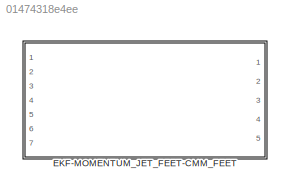
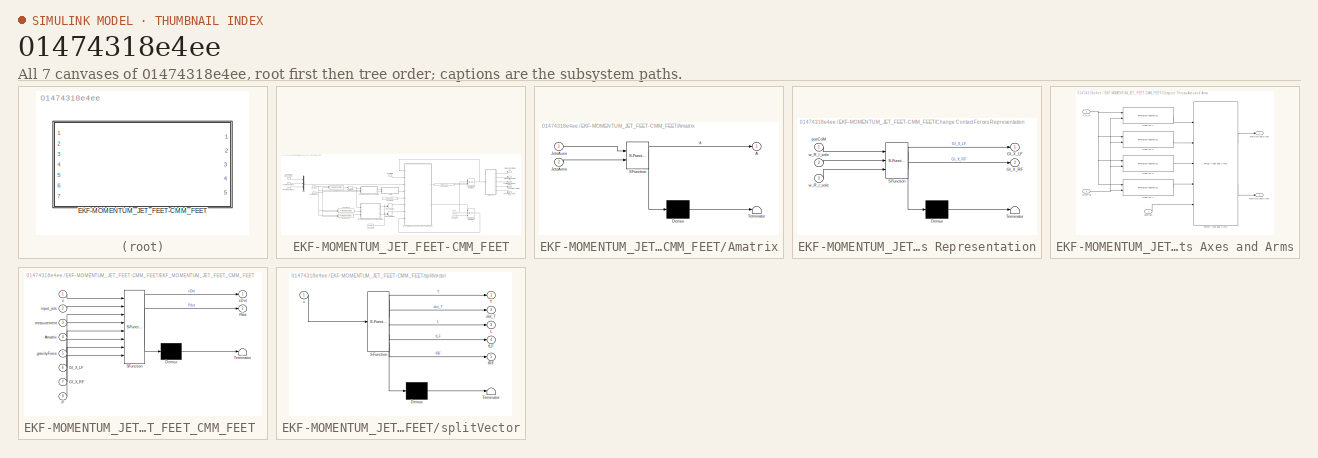
[diagram: thumbnail index - all 7 canvases of the model, root first then tree order]
MODEL slx_01474318e4ee
KIND library
CONFIG AbsTol = auto
CONFIG EnableMultiTasking = off
CONFIG FixedStep = auto
CONFIG MaxStep = auto
CONFIG MinStep = auto
CONFIG RelTol = 1e-3
CONFIG SampleTimeConstraint = Unconstrained
CONFIG SolverName = VariableStepAuto
CONFIG StartTime = 0.0
CONFIG StopTime = 10.0
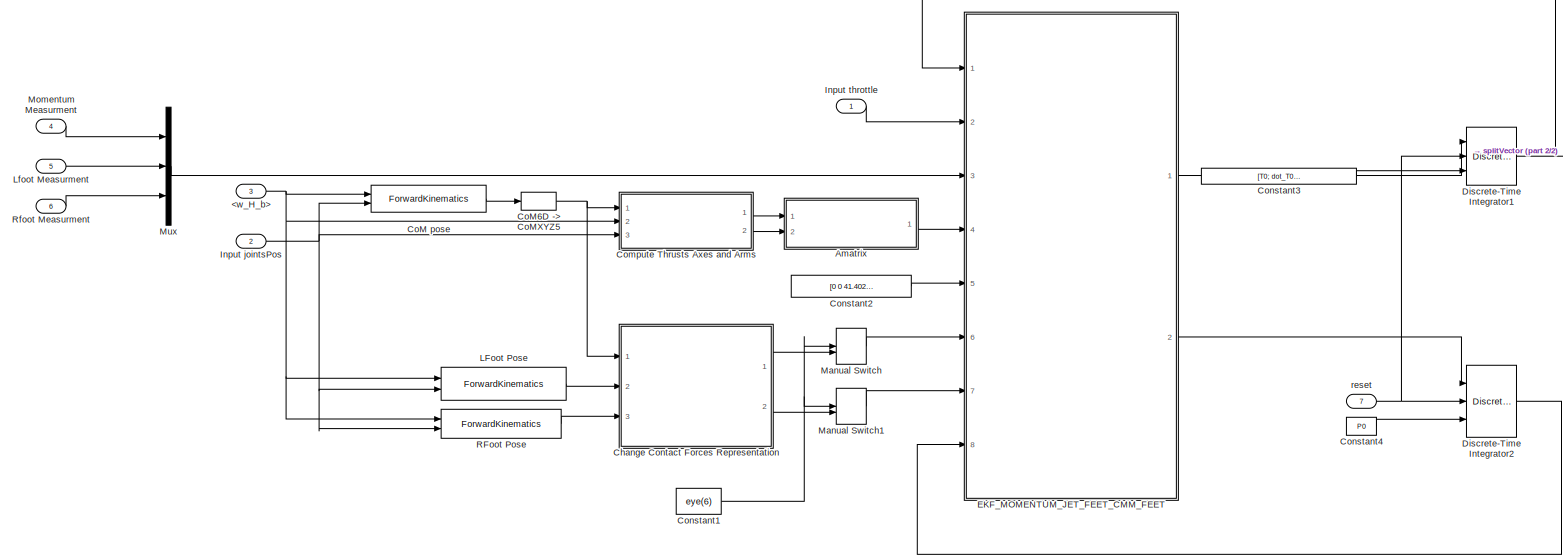
[diagram: EKF-MOMENTUM_JET_FEET-CMM_FEET - part 1/2, most of the canvas]
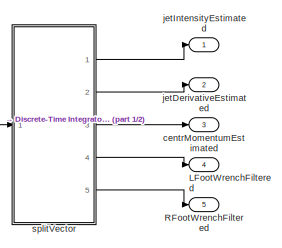
[diagram: EKF-MOMENTUM_JET_FEET-CMM_FEET - part 2/2, middle right region]
BLOCK [SubSystem] EKF-MOMENTUM_JET_FEET-CMM_FEET
  Ports = [7, 5]
  RequestExecContextInheritance = off
BLOCK [Inport] EKF-MOMENTUM_JET_FEET-CMM_FEET/<w_H_b>
  Port = 3
BLOCK [SubSystem] EKF-MOMENTUM_JET_FEET-CMM_FEET/Amatrix
  ErrorFcn = Stateflow.Translate.translate
  PermitHierarchicalResolution = ExplicitOnly
  Ports = [2, 1]
  RequestExecContextInheritance = off
  SFBlockType = MATLAB Function
  TreatAsAtomicUnit = on
BLOCK [Demux] EKF-MOMENTUM_JET_FEET-CMM_FEET/Amatrix/ Demux 
  Outputs = 1
  Ports = [1, 1]
BLOCK [S-Function] EKF-MOMENTUM_JET_FEET-CMM_FEET/Amatrix/ SFunction 
  EnableBusSupport = off
  FunctionName = sf_sfun
  PortCounts = [2 2]
  Ports = [2, 2]
  SFcnIsStateOwnerBlock = off
  SFunctionDeploymentMode = off
  Tag = Stateflow S-Function 22
BLOCK [Terminator] EKF-MOMENTUM_JET_FEET-CMM_FEET/Amatrix/ Terminator 
BLOCK [Outport] EKF-MOMENTUM_JET_FEET-CMM_FEET/Amatrix/A
  VectorParamsAs1DForOutWhenUnconnected = off
BLOCK [Inport] EKF-MOMENTUM_JET_FEET-CMM_FEET/Amatrix/JetsArms
  Port = 2
BLOCK [Inport] EKF-MOMENTUM_JET_FEET-CMM_FEET/Amatrix/JetsAxes
BLOCK [SubSystem] EKF-MOMENTUM_JET_FEET-CMM_FEET/Change Contact Forces Representation
  ErrorFcn = Stateflow.Translate.translate
  PermitHierarchicalResolution = ExplicitOnly
  Ports = [3, 2]
  RequestExecContextInheritance = off
  SFBlockType = MATLAB Function
  TreatAsAtomicUnit = on
BLOCK [Demux] EKF-MOMENTUM_JET_FEET-CMM_FEET/Change Contact Forces Representation/ Demux 
  Outputs = 1
  Ports = [1, 1]
BLOCK [S-Function] EKF-MOMENTUM_JET_FEET-CMM_FEET/Change Contact Forces Representation/ SFunction 
  EnableBusSupport = off
  FunctionName = sf_sfun
  PortCounts = [3 3]
  Ports = [3, 3]
  SFcnIsStateOwnerBlock = off
  SFunctionDeploymentMode = off
  Tag = Stateflow S-Function 30
BLOCK [Terminator] EKF-MOMENTUM_JET_FEET-CMM_FEET/Change Contact Forces Representation/ Terminator 
BLOCK [Outport] EKF-MOMENTUM_JET_FEET-CMM_FEET/Change Contact Forces Representation/GI_X_LF
  VectorParamsAs1DForOutWhenUnconnected = off
BLOCK [Outport] EKF-MOMENTUM_JET_FEET-CMM_FEET/Change Contact Forces Representation/GI_X_RF
  Port = 2
  VectorParamsAs1DForOutWhenUnconnected = off
BLOCK [Inport] EKF-MOMENTUM_JET_FEET-CMM_FEET/Change Contact Forces Representation/posCoM
BLOCK [Inport] EKF-MOMENTUM_JET_FEET-CMM_FEET/Change Contact Forces Representation/w_R_l_sole
  Port = 2
BLOCK [Inport] EKF-MOMENTUM_JET_FEET-CMM_FEET/Change Contact Forces Representation/w_R_r_sole
  Port = 3
BLOCK [Reference] EKF-MOMENTUM_JET_FEET-CMM_FEET/CoM pose  REF=WBToolboxLibrary/Model/Kinematics/ForwardKinematics
  NameLocation = top
  Ports = [2, 1]
  SourceBlock = WBToolboxLibrary/Model/Kinematics/ForwardKinematics
  SourceProductName = WholeBodyToolbox
  SourceType = ForwardKinematics
BLOCK [Selector] EKF-MOMENTUM_JET_FEET-CMM_FEET/CoM6D -> CoMXYZ5
  IndexOptions = Index vector (dialog),Index vector (dialog)
  Indices = [1 2 3],[4]
  InputPortWidth = 7
  NumberOfDimensions = 2
  OutputSizes = 1,1
  Ports = [1, 1]
BLOCK [SubSystem] EKF-MOMENTUM_JET_FEET-CMM_FEET/Compute Thrusts Axes and Arms
  Ports = [3, 2]
  RequestExecContextInheritance = off
BLOCK [Reference] EKF-MOMENTUM_JET_FEET-CMM_FEET/Compute Thrusts Axes and Arms/Pose Jet 1  REF=WBToolboxLibrary/Model/Kinematics/ForwardKinematics
  Ports = [2, 1]
  SourceBlock = WBToolboxLibrary/Model/Kinematics/ForwardKinematics
  SourceProductName = WholeBodyToolbox
  SourceType = ForwardKinematics
BLOCK [Reference] EKF-MOMENTUM_JET_FEET-CMM_FEET/Compute Thrusts Axes and Arms/Pose Jet 2  REF=WBToolboxLibrary/Model/Kinematics/ForwardKinematics
  Ports = [2, 1]
  SourceBlock = WBToolboxLibrary/Model/Kinematics/ForwardKinematics
  SourceProductName = WholeBodyToolbox
  SourceType = ForwardKinematics
BLOCK [Reference] EKF-MOMENTUM_JET_FEET-CMM_FEET/Compute Thrusts Axes and Arms/Pose Jet 3  REF=WBToolboxLibrary/Model/Kinematics/ForwardKinematics
  Ports = [2, 1]
  SourceBlock = WBToolboxLibrary/Model/Kinematics/ForwardKinematics
  SourceProductName = WholeBodyToolbox
  SourceType = ForwardKinematics
BLOCK [Reference] EKF-MOMENTUM_JET_FEET-CMM_FEET/Compute Thrusts Axes and Arms/Pose Jet 4  REF=WBToolboxLibrary/Model/Kinematics/ForwardKinematics
  Ports = [2, 1]
  SourceBlock = WBToolboxLibrary/Model/Kinematics/ForwardKinematics
  SourceProductName = WholeBodyToolbox
  SourceType = ForwardKinematics
BLOCK [Reference] EKF-MOMENTUM_JET_FEET-CMM_FEET/Compute Thrusts Axes and Arms/Thrust Axes and Arms  REF=momentum_flight_control_v1/Dynamics and Kinematics/Kinematic Quantities/Compute Thrusts Axes and Arms/Thrust Axes and Arms  (lib defined in slx_fc105a0923ff)
  Ports = [5, 2]
  SourceBlock = momentum_flight_control_v1/Dynamics and Kinematics/Kinematic Quantities/Compute Thrusts Axes and Arms/Thrust Axes and Arms
  SourceProductName = iRonCub Library v1
  SourceType = SubSystem
BLOCK [Inport] EKF-MOMENTUM_JET_FEET-CMM_FEET/Compute Thrusts Axes and Arms/jointPos
  Port = 3
BLOCK [Outport] EKF-MOMENTUM_JET_FEET-CMM_FEET/Compute Thrusts Axes and Arms/matrixOfJetsArms
  Port = 2
  VectorParamsAs1DForOutWhenUnconnected = off
BLOCK [Outport] EKF-MOMENTUM_JET_FEET-CMM_FEET/Compute Thrusts Axes and Arms/matrixOfJetsAxes
  VectorParamsAs1DForOutWhenUnconnected = off
BLOCK [Inport] EKF-MOMENTUM_JET_FEET-CMM_FEET/Compute Thrusts Axes and Arms/posCoM
BLOCK [Inport] EKF-MOMENTUM_JET_FEET-CMM_FEET/Compute Thrusts Axes and Arms/w_H_b
  Port = 2
BLOCK [Constant] EKF-MOMENTUM_JET_FEET-CMM_FEET/Constant1
  Value = eye(6)
BLOCK [Constant] EKF-MOMENTUM_JET_FEET-CMM_FEET/Constant2
  Value = [0 0 41.402*9.81 0 0 0]
BLOCK [Constant] EKF-MOMENTUM_JET_FEET-CMM_FEET/Constant3
  Value = [T0; dot_T0; h0; fLF0; fRF0]
  VectorParams1D = off
BLOCK [Constant] EKF-MOMENTUM_JET_FEET-CMM_FEET/Constant4
  Value = P0
BLOCK [DiscreteIntegrator] EKF-MOMENTUM_JET_FEET-CMM_FEET/Discrete-Time Integrator1
  ExternalReset = rising
  ICPrevOutput = DiscIntNeverNeededParam
  ICPrevScaledInput = DiscIntNeverNeededParam
  InitialConditionSetting = Auto
  InitialConditionSource = external
  Ports = [3, 1]
  SampleTime = Ts
BLOCK [DiscreteIntegrator] EKF-MOMENTUM_JET_FEET-CMM_FEET/Discrete-Time Integrator2
  ExternalReset = rising
  ICPrevOutput = DiscIntNeverNeededParam
  ICPrevScaledInput = DiscIntNeverNeededParam
  InitialConditionSetting = Auto
  InitialConditionSource = external
  Ports = [3, 1]
  SampleTime = Ts
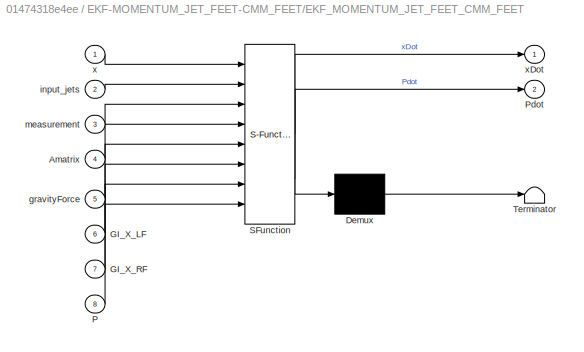
BLOCK [SubSystem] EKF-MOMENTUM_JET_FEET-CMM_FEET/EKF_MOMENTUM_JET_FEET_CMM_FEET 
  ErrorFcn = Stateflow.Translate.translate
  PermitHierarchicalResolution = ExplicitOnly
  Ports = [8, 2]
  RequestExecContextInheritance = off
  SFBlockType = MATLAB Function
  TreatAsAtomicUnit = on
BLOCK [Demux] EKF-MOMENTUM_JET_FEET-CMM_FEET/EKF_MOMENTUM_JET_FEET_CMM_FEET / Demux 
  Outputs = 1
  Ports = [1, 1]
BLOCK [S-Function] EKF-MOMENTUM_JET_FEET-CMM_FEET/EKF_MOMENTUM_JET_FEET_CMM_FEET / SFunction 
  EnableBusSupport = off
  FunctionName = sf_sfun
  Parameters = Q,R,jetC_P100,jetC_P220
  PortCounts = [8 3]
  Ports = [8, 3]
  SFcnIsStateOwnerBlock = off
  SFunctionDeploymentMode = off
  Tag = Stateflow S-Function 23
BLOCK [Terminator] EKF-MOMENTUM_JET_FEET-CMM_FEET/EKF_MOMENTUM_JET_FEET_CMM_FEET / Terminator 
BLOCK [Inport] EKF-MOMENTUM_JET_FEET-CMM_FEET/EKF_MOMENTUM_JET_FEET_CMM_FEET /Amatrix
  Port = 4
BLOCK [Inport] EKF-MOMENTUM_JET_FEET-CMM_FEET/EKF_MOMENTUM_JET_FEET_CMM_FEET /GI_X_LF
  Port = 6
BLOCK [Inport] EKF-MOMENTUM_JET_FEET-CMM_FEET/EKF_MOMENTUM_JET_FEET_CMM_FEET /GI_X_RF
  Port = 7
BLOCK [Inport] EKF-MOMENTUM_JET_FEET-CMM_FEET/EKF_MOMENTUM_JET_FEET_CMM_FEET /P
  Port = 8
BLOCK [Outport] EKF-MOMENTUM_JET_FEET-CMM_FEET/EKF_MOMENTUM_JET_FEET_CMM_FEET /Pdot
  Port = 2
  VectorParamsAs1DForOutWhenUnconnected = off
BLOCK [Inport] EKF-MOMENTUM_JET_FEET-CMM_FEET/EKF_MOMENTUM_JET_FEET_CMM_FEET /gravityForce
  Port = 5
BLOCK [Inport] EKF-MOMENTUM_JET_FEET-CMM_FEET/EKF_MOMENTUM_JET_FEET_CMM_FEET /input_jets
  Port = 2
BLOCK [Inport] EKF-MOMENTUM_JET_FEET-CMM_FEET/EKF_MOMENTUM_JET_FEET_CMM_FEET /measurement
  Port = 3
BLOCK [Inport] EKF-MOMENTUM_JET_FEET-CMM_FEET/EKF_MOMENTUM_JET_FEET_CMM_FEET /x
BLOCK [Outport] EKF-MOMENTUM_JET_FEET-CMM_FEET/EKF_MOMENTUM_JET_FEET_CMM_FEET /xDot
  VectorParamsAs1DForOutWhenUnconnected = off
BLOCK [Inport] EKF-MOMENTUM_JET_FEET-CMM_FEET/Input jointsPos
  Port = 2
BLOCK [Inport] EKF-MOMENTUM_JET_FEET-CMM_FEET/Input throttle
BLOCK [Reference] EKF-MOMENTUM_JET_FEET-CMM_FEET/LFoot Pose  REF=WBToolboxLibrary/Model/Kinematics/ForwardKinematics
  NameLocation = top
  Ports = [2, 1]
  SourceBlock = WBToolboxLibrary/Model/Kinematics/ForwardKinematics
  SourceProductName = WholeBodyToolbox
  SourceType = ForwardKinematics
BLOCK [Outport] EKF-MOMENTUM_JET_FEET-CMM_FEET/LFootWrenchFiltered
  Port = 4
  VectorParamsAs1DForOutWhenUnconnected = off
BLOCK [Inport] EKF-MOMENTUM_JET_FEET-CMM_FEET/Lfoot Measurment
  Port = 5
BLOCK [ManualSwitch] EKF-MOMENTUM_JET_FEET-CMM_FEET/Manual Switch
  CurrentSetting = 0
BLOCK [ManualSwitch] EKF-MOMENTUM_JET_FEET-CMM_FEET/Manual Switch1
  CurrentSetting = 0
BLOCK [Inport] EKF-MOMENTUM_JET_FEET-CMM_FEET/Momentum Measurment
  Port = 4
BLOCK [Mux] EKF-MOMENTUM_JET_FEET-CMM_FEET/Mux
  DisplayOption = bar
  Inputs = 3
  Ports = [3, 1]
BLOCK [Reference] EKF-MOMENTUM_JET_FEET-CMM_FEET/RFoot Pose  REF=WBToolboxLibrary/Model/Kinematics/ForwardKinematics
  Ports = [2, 1]
  SourceBlock = WBToolboxLibrary/Model/Kinematics/ForwardKinematics
  SourceProductName = WholeBodyToolbox
  SourceType = ForwardKinematics
BLOCK [Outport] EKF-MOMENTUM_JET_FEET-CMM_FEET/RFootWrenchFiltered
  Port = 5
  VectorParamsAs1DForOutWhenUnconnected = off
BLOCK [Inport] EKF-MOMENTUM_JET_FEET-CMM_FEET/Rfoot Measurment
  Port = 6
BLOCK [Outport] EKF-MOMENTUM_JET_FEET-CMM_FEET/centrMomentumEstimated
  Port = 3
  VectorParamsAs1DForOutWhenUnconnected = off
BLOCK [Outport] EKF-MOMENTUM_JET_FEET-CMM_FEET/jetDerivativeEstimated
  Port = 2
  VectorParamsAs1DForOutWhenUnconnected = off
BLOCK [Outport] EKF-MOMENTUM_JET_FEET-CMM_FEET/jetIntensityEstimated
  VectorParamsAs1DForOutWhenUnconnected = off
BLOCK [Inport] EKF-MOMENTUM_JET_FEET-CMM_FEET/reset
  NameLocation = left
  Port = 7
BLOCK [SubSystem] EKF-MOMENTUM_JET_FEET-CMM_FEET/splitVector
  ErrorFcn = Stateflow.Translate.translate
  PermitHierarchicalResolution = ExplicitOnly
  Ports = [1, 5]
  RequestExecContextInheritance = off
  SFBlockType = MATLAB Function
  TreatAsAtomicUnit = on
BLOCK [Demux] EKF-MOMENTUM_JET_FEET-CMM_FEET/splitVector/ Demux 
  Outputs = 1
  Ports = [1, 1]
BLOCK [S-Function] EKF-MOMENTUM_JET_FEET-CMM_FEET/splitVector/ SFunction 
  EnableBusSupport = off
  FunctionName = sf_sfun
  PortCounts = [1 6]
  Ports = [1, 6]
  SFcnIsStateOwnerBlock = off
  SFunctionDeploymentMode = off
  Tag = Stateflow S-Function 24
BLOCK [Terminator] EKF-MOMENTUM_JET_FEET-CMM_FEET/splitVector/ Terminator 
BLOCK [Outport] EKF-MOMENTUM_JET_FEET-CMM_FEET/splitVector/L
  Port = 3
BLOCK [Outport] EKF-MOMENTUM_JET_FEET-CMM_FEET/splitVector/T
  VectorParamsAs1DForOutWhenUnconnected = off
BLOCK [Outport] EKF-MOMENTUM_JET_FEET-CMM_FEET/splitVector/dot_T
  Port = 2
BLOCK [Outport] EKF-MOMENTUM_JET_FEET-CMM_FEET/splitVector/fLF
  Port = 4
BLOCK [Outport] EKF-MOMENTUM_JET_FEET-CMM_FEET/splitVector/fRF
  Port = 5
BLOCK [Inport] EKF-MOMENTUM_JET_FEET-CMM_FEET/splitVector/x
NET EKF-MOMENTUM_JET_FEET-CMM_FEET/<w_H_b>:1 -> EKF-MOMENTUM_JET_FEET-CMM_FEET/CoM pose:1, EKF-MOMENTUM_JET_FEET-CMM_FEET/Compute Thrusts Axes and Arms:2, EKF-MOMENTUM_JET_FEET-CMM_FEET/LFoot Pose:1, EKF-MOMENTUM_JET_FEET-CMM_FEET/RFoot Pose:1
LINE EKF-MOMENTUM_JET_FEET-CMM_FEET/Amatrix:1 -> EKF-MOMENTUM_JET_FEET-CMM_FEET/EKF_MOMENTUM_JET_FEET_CMM_FEET :4
LINE EKF-MOMENTUM_JET_FEET-CMM_FEET/Change Contact Forces Representation:1 -> EKF-MOMENTUM_JET_FEET-CMM_FEET/Manual Switch:2
LINE EKF-MOMENTUM_JET_FEET-CMM_FEET/Change Contact Forces Representation:2 -> EKF-MOMENTUM_JET_FEET-CMM_FEET/Manual Switch1:2
LINE EKF-MOMENTUM_JET_FEET-CMM_FEET/CoM pose:1 -> EKF-MOMENTUM_JET_FEET-CMM_FEET/CoM6D -> CoMXYZ5:1
NET EKF-MOMENTUM_JET_FEET-CMM_FEET/CoM6D -> CoMXYZ5:1 -> EKF-MOMENTUM_JET_FEET-CMM_FEET/Change Contact Forces Representation:1, EKF-MOMENTUM_JET_FEET-CMM_FEET/Compute Thrusts Axes and Arms:1
LINE EKF-MOMENTUM_JET_FEET-CMM_FEET/Compute Thrusts Axes and Arms/Pose Jet 1:1 -> EKF-MOMENTUM_JET_FEET-CMM_FEET/Compute Thrusts Axes and Arms/Thrust Axes and Arms:1
LINE EKF-MOMENTUM_JET_FEET-CMM_FEET/Compute Thrusts Axes and Arms/Pose Jet 2:1 -> EKF-MOMENTUM_JET_FEET-CMM_FEET/Compute Thrusts Axes and Arms/Thrust Axes and Arms:2
LINE EKF-MOMENTUM_JET_FEET-CMM_FEET/Compute Thrusts Axes and Arms/Pose Jet 3:1 -> EKF-MOMENTUM_JET_FEET-CMM_FEET/Compute Thrusts Axes and Arms/Thrust Axes and Arms:3
LINE EKF-MOMENTUM_JET_FEET-CMM_FEET/Compute Thrusts Axes and Arms/Pose Jet 4:1 -> EKF-MOMENTUM_JET_FEET-CMM_FEET/Compute Thrusts Axes and Arms/Thrust Axes and Arms:4
LINE EKF-MOMENTUM_JET_FEET-CMM_FEET/Compute Thrusts Axes and Arms/Thrust Axes and Arms:1 -> EKF-MOMENTUM_JET_FEET-CMM_FEET/Compute Thrusts Axes and Arms/matrixOfJetsAxes:1
LINE EKF-MOMENTUM_JET_FEET-CMM_FEET/Compute Thrusts Axes and Arms/Thrust Axes and Arms:2 -> EKF-MOMENTUM_JET_FEET-CMM_FEET/Compute Thrusts Axes and Arms/matrixOfJetsArms:1
NET EKF-MOMENTUM_JET_FEET-CMM_FEET/Compute Thrusts Axes and Arms/jointPos:1 -> EKF-MOMENTUM_JET_FEET-CMM_FEET/Compute Thrusts Axes and Arms/Pose Jet 1:2, EKF-MOMENTUM_JET_FEET-CMM_FEET/Compute Thrusts Axes and Arms/Pose Jet 2:2, EKF-MOMENTUM_JET_FEET-CMM_FEET/Compute Thrusts Axes and Arms/Pose Jet 3:2, EKF-MOMENTUM_JET_FEET-CMM_FEET/Compute Thrusts Axes and Arms/Pose Jet 4:2
LINE EKF-MOMENTUM_JET_FEET-CMM_FEET/Compute Thrusts Axes and Arms/posCoM:1 -> EKF-MOMENTUM_JET_FEET-CMM_FEET/Compute Thrusts Axes and Arms/Thrust Axes and Arms:5
NET EKF-MOMENTUM_JET_FEET-CMM_FEET/Compute Thrusts Axes and Arms/w_H_b:1 -> EKF-MOMENTUM_JET_FEET-CMM_FEET/Compute Thrusts Axes and Arms/Pose Jet 1:1, EKF-MOMENTUM_JET_FEET-CMM_FEET/Compute Thrusts Axes and Arms/Pose Jet 2:1, EKF-MOMENTUM_JET_FEET-CMM_FEET/Compute Thrusts Axes and Arms/Pose Jet 3:1, EKF-MOMENTUM_JET_FEET-CMM_FEET/Compute Thrusts Axes and Arms/Pose Jet 4:1
LINE EKF-MOMENTUM_JET_FEET-CMM_FEET/Compute Thrusts Axes and Arms:1 -> EKF-MOMENTUM_JET_FEET-CMM_FEET/Amatrix:1
LINE EKF-MOMENTUM_JET_FEET-CMM_FEET/Compute Thrusts Axes and Arms:2 -> EKF-MOMENTUM_JET_FEET-CMM_FEET/Amatrix:2
NET EKF-MOMENTUM_JET_FEET-CMM_FEET/Constant1:1 -> EKF-MOMENTUM_JET_FEET-CMM_FEET/Manual Switch1:1, EKF-MOMENTUM_JET_FEET-CMM_FEET/Manual Switch:1
LINE EKF-MOMENTUM_JET_FEET-CMM_FEET/Constant2:1 -> EKF-MOMENTUM_JET_FEET-CMM_FEET/EKF_MOMENTUM_JET_FEET_CMM_FEET :5
LINE EKF-MOMENTUM_JET_FEET-CMM_FEET/Constant3:1 -> EKF-MOMENTUM_JET_FEET-CMM_FEET/Discrete-Time Integrator1:3
LINE EKF-MOMENTUM_JET_FEET-CMM_FEET/Constant4:1 -> EKF-MOMENTUM_JET_FEET-CMM_FEET/Discrete-Time Integrator2:3
NET EKF-MOMENTUM_JET_FEET-CMM_FEET/Discrete-Time Integrator1:1 -> EKF-MOMENTUM_JET_FEET-CMM_FEET/EKF_MOMENTUM_JET_FEET_CMM_FEET :1, EKF-MOMENTUM_JET_FEET-CMM_FEET/splitVector:1
LINE EKF-MOMENTUM_JET_FEET-CMM_FEET/Discrete-Time Integrator2:1 -> EKF-MOMENTUM_JET_FEET-CMM_FEET/EKF_MOMENTUM_JET_FEET_CMM_FEET :8
LINE EKF-MOMENTUM_JET_FEET-CMM_FEET/EKF_MOMENTUM_JET_FEET_CMM_FEET :1 -> EKF-MOMENTUM_JET_FEET-CMM_FEET/Discrete-Time Integrator1:1
LINE EKF-MOMENTUM_JET_FEET-CMM_FEET/EKF_MOMENTUM_JET_FEET_CMM_FEET :2 -> EKF-MOMENTUM_JET_FEET-CMM_FEET/Discrete-Time Integrator2:1
NET EKF-MOMENTUM_JET_FEET-CMM_FEET/Input jointsPos:1 -> EKF-MOMENTUM_JET_FEET-CMM_FEET/CoM pose:2, EKF-MOMENTUM_JET_FEET-CMM_FEET/Compute Thrusts Axes and Arms:3, EKF-MOMENTUM_JET_FEET-CMM_FEET/LFoot Pose:2, EKF-MOMENTUM_JET_FEET-CMM_FEET/RFoot Pose:2
LINE EKF-MOMENTUM_JET_FEET-CMM_FEET/Input throttle:1 -> EKF-MOMENTUM_JET_FEET-CMM_FEET/EKF_MOMENTUM_JET_FEET_CMM_FEET :2
LINE EKF-MOMENTUM_JET_FEET-CMM_FEET/LFoot Pose:1 -> EKF-MOMENTUM_JET_FEET-CMM_FEET/Change Contact Forces Representation:2
LINE EKF-MOMENTUM_JET_FEET-CMM_FEET/Lfoot Measurment:1 -> EKF-MOMENTUM_JET_FEET-CMM_FEET/Mux:2
LINE EKF-MOMENTUM_JET_FEET-CMM_FEET/Manual Switch1:1 -> EKF-MOMENTUM_JET_FEET-CMM_FEET/EKF_MOMENTUM_JET_FEET_CMM_FEET :7
LINE EKF-MOMENTUM_JET_FEET-CMM_FEET/Manual Switch:1 -> EKF-MOMENTUM_JET_FEET-CMM_FEET/EKF_MOMENTUM_JET_FEET_CMM_FEET :6
LINE EKF-MOMENTUM_JET_FEET-CMM_FEET/Momentum Measurment:1 -> EKF-MOMENTUM_JET_FEET-CMM_FEET/Mux:1
LINE EKF-MOMENTUM_JET_FEET-CMM_FEET/Mux:1 -> EKF-MOMENTUM_JET_FEET-CMM_FEET/EKF_MOMENTUM_JET_FEET_CMM_FEET :3
LINE EKF-MOMENTUM_JET_FEET-CMM_FEET/RFoot Pose:1 -> EKF-MOMENTUM_JET_FEET-CMM_FEET/Change Contact Forces Representation:3
LINE EKF-MOMENTUM_JET_FEET-CMM_FEET/Rfoot Measurment:1 -> EKF-MOMENTUM_JET_FEET-CMM_FEET/Mux:3
NET EKF-MOMENTUM_JET_FEET-CMM_FEET/reset:1 -> EKF-MOMENTUM_JET_FEET-CMM_FEET/Discrete-Time Integrator1:2, EKF-MOMENTUM_JET_FEET-CMM_FEET/Discrete-Time Integrator2:2
LINE EKF-MOMENTUM_JET_FEET-CMM_FEET/splitVector:1 -> EKF-MOMENTUM_JET_FEET-CMM_FEET/jetIntensityEstimated:1
LINE EKF-MOMENTUM_JET_FEET-CMM_FEET/splitVector:2 -> EKF-MOMENTUM_JET_FEET-CMM_FEET/jetDerivativeEstimated:1
LINE EKF-MOMENTUM_JET_FEET-CMM_FEET/splitVector:3 -> EKF-MOMENTUM_JET_FEET-CMM_FEET/centrMomentumEstimated:1
LINE EKF-MOMENTUM_JET_FEET-CMM_FEET/splitVector:4 -> EKF-MOMENTUM_JET_FEET-CMM_FEET/LFootWrenchFiltered:1
LINE EKF-MOMENTUM_JET_FEET-CMM_FEET/splitVector:5 -> EKF-MOMENTUM_JET_FEET-CMM_FEET/RFootWrenchFiltered:1
note: NET lines group one-source signal fan-out (src -> all destinations, sorted); 1:1 wires keep LINE
CHART EKF-MOMENTUM_JET_FEET-CMM_FEET/Amatrix states=1 transitions=1
  STATE_LABEL 'eML_blk_kernel()'
  STATE_LABEL 'SCRIPT:\nfunction A  = AmatrixFCN(JetsAxes, JetsArms)\n\n[A] = iRonCubLib_v1.Amatrix(JetsAxes, JetsArms);\n\n'
CHART EKF-MOMENTUM_JET_FEET-CMM_FEET/EKF_MOMENTUM_JET_FEET_CMM_FEET
 states=1 transitions=1
  STATE_LABEL 'eML_blk_kernel()'
  STATE_LABEL 'SCRIPT:\nfunction [xDot, Pdot] = EKF_MOMENTUM_JET_FEET_CMM_FEET_FNC(x, input_jets, measurement, Amatrix, gravityForce, GI_X_LF, GI_X_RF, P, Q, R, jetC_P100, jetC_P220)\n\n[xDot, Pdot] = iRonCubLib_v1.EKF_MOMENTUM_JET_FEET_CMM_FEET(x, input_jets,jetC_P100, jetC_P220, P, measurement, Amatrix, GI_X_LF, GI_X_RF, gravityForce, Q, R);\n\n'
CHART EKF-MOMENTUM_JET_FEET-CMM_FEET/splitVector states=1 transitions=1
  STATE_LABEL 'eML_blk_kernel()'
  STATE_LABEL 'SCRIPT:\nfunction [T, dot_T, L, fLF, fRF] = demux_state(x)\n    T     = x(1:4);\n    dot_T = x(5:8);\n    L     = x(9:14);\n    fLF   = x(15:20);\n    fRF   = x(21:26);\nend'
CHART EKF-MOMENTUM_JET_FEET-CMM_FEET/Change Contact Forces Representation states=1 transitions=1
  STATE_LABEL 'eML_blk_kernel()'
  STATE_LABEL 'SCRIPT:\nfunction [GI_X_LF, GI_X_RF] = AdjWrenchTrBlockDiag(posCoM, w_R_l_sole, w_R_r_sole)\n\n    % Distances between feet frames origins and the CoM position\n    r_l_sole = w_R_l_sole(1:3,4) - posCoM;\n    r_r_sole = w_R_r_sole(1:3,4) - posCoM;              \n\n    % from body frame to mixed representation of the contact forces\n    GI_X_LF = [w_R_l_sole(1:3,1:3),               zeros(3); ...\n        wb...<+201ch>'
CHART  states=0 transitions=0
CHART  states=0 transitions=0
CHART  states=0 transitions=0
CHART  states=0 transitions=0
